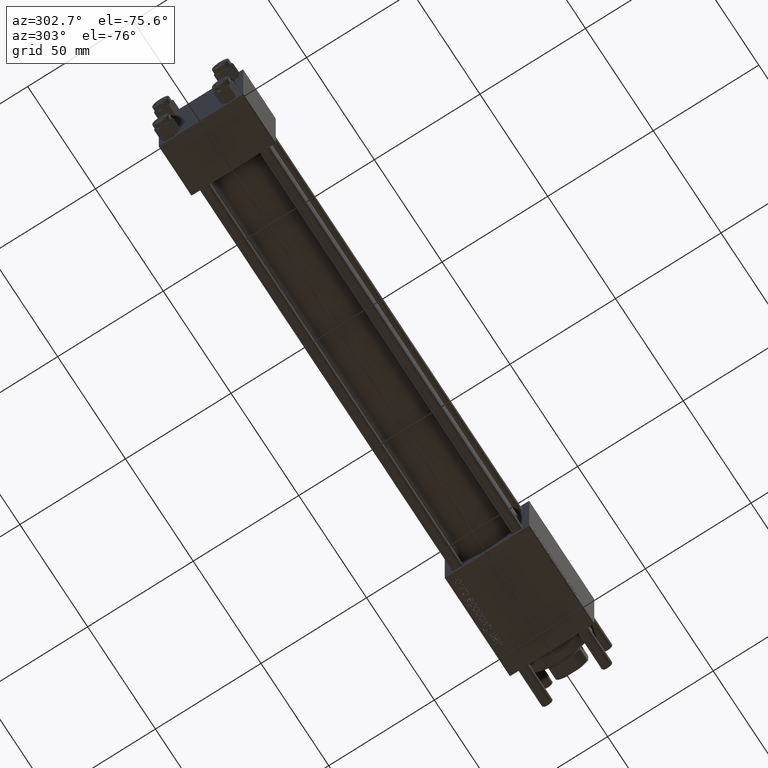
[diagram: clean part render]
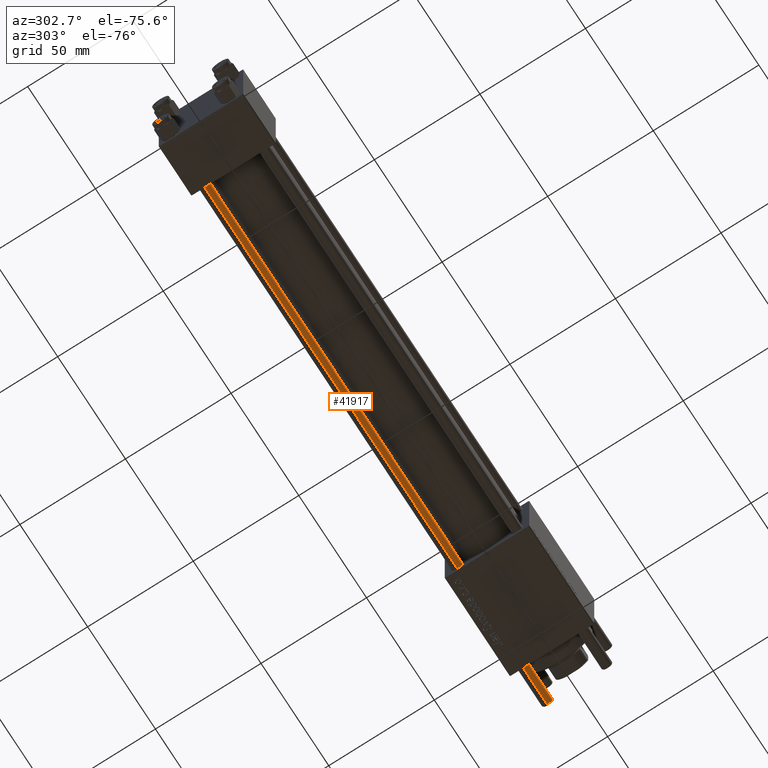
[diagram: same view with one face highlighted and labeled with its STEP entity id]
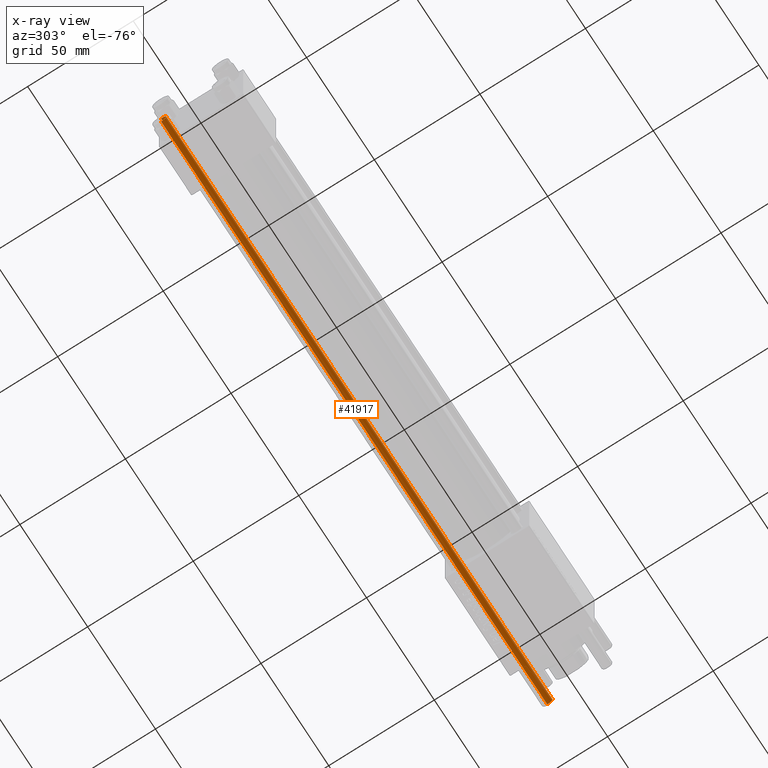
[diagram: x-ray of the same camera — body ghosted, the highlighted face saturated]
A machine part, auxiliary view. The second image highlights one B-rep face of the part: STEP entity #41917.
The next image is the same camera in x-ray: the body ghosted, the highlighted face saturated — about 0% of this face is hidden behind the body in this view.
In plain terms, the highlighted cylindrical surface (edge-blend (fillet) strip) has radius 2.5 mm, axis along (-1, -0, 0).
Its self-contained STEP definition (entity closure, byte-faithful):
#3149 = VERTEX_POINT ( 'NONE', #19335 ) ;
#3913 = DIRECTION ( 'NONE',  ( 1.000000000000000000, 0.000000000000000000, 0.000000000000000000 ) ) ;
#5172 = DIRECTION ( 'NONE',  ( -0.000000000000000000, -0.000000000000000000, -1.000000000000000000 ) ) ;
#5392 = CARTESIAN_POINT ( 'NONE',  ( 0.000000000000000000, 0.000000000000000000, 286.0000000000000000 ) ) ;
#6002 = CIRCLE ( 'NONE', #43508, 2.500000000000000000 ) ;
#6229 = DIRECTION ( 'NONE',  ( -0.000000000000000000, -0.000000000000000000, -1.000000000000000000 ) ) ;
#11170 = DIRECTION ( 'NONE',  ( -0.000000000000000000, -0.000000000000000000, -1.000000000000000000 ) ) ;
#11255 = ORIENTED_EDGE ( 'NONE', *, *, #35222, .F. ) ;
#13073 = CARTESIAN_POINT ( 'NONE',  ( 0.000000000000000000, 0.000000000000000000, 0.4999999999999449329 ) ) ;
#14229 = AXIS2_PLACEMENT_3D ( 'NONE', #13073, #25652, #3913 ) ;
#16055 = CIRCLE ( 'NONE', #14229, 2.500000000000000000 ) ;
#17440 = ORIENTED_EDGE ( 'NONE', *, *, #51909, .T. ) ;
#18058 = CARTESIAN_POINT ( 'NONE',  ( -2.500000000000000000, 0.000000000000000000, 286.0000000000000000 ) ) ;
#18187 = EDGE_CURVE ( 'NONE', #34528, #36502, #53039, .T. ) ;
#18227 = CARTESIAN_POINT ( 'NONE',  ( 2.500000000000000000, 3.061616997868383141E-16, 285.4999999999999432 ) ) ;
#19335 = CARTESIAN_POINT ( 'NONE',  ( 2.500000000000000000, 3.061616997868383141E-16, 0.4999999999999449329 ) ) ;
#20025 = LINE ( 'NONE', #24036, #25726 ) ;
#23670 = DIRECTION ( 'NONE',  ( -1.000000000000000000, 0.000000000000000000, 0.000000000000000000 ) ) ;
#24036 = CARTESIAN_POINT ( 'NONE',  ( 2.500000000000000000, 3.061616997868383141E-16, 286.0000000000000000 ) ) ;
#24111 = ORIENTED_EDGE ( 'NONE', *, *, #18187, .T. ) ;
#24150 = CARTESIAN_POINT ( 'NONE',  ( -2.500000000000000000, 0.000000000000000000, 0.4999999999999449329 ) ) ;
#24517 = CARTESIAN_POINT ( 'NONE',  ( 0.000000000000000000, 0.000000000000000000, 285.4999999999999432 ) ) ;
#25652 = DIRECTION ( 'NONE',  ( -0.000000000000000000, -0.000000000000000000, 1.000000000000000000 ) ) ;
#25726 = VECTOR ( 'NONE', #11170, 1000.000000000000000 ) ;
#27132 = FACE_OUTER_BOUND ( 'NONE', #39697, .T. ) ;
#32849 = DIRECTION ( 'NONE',  ( 1.000000000000000000, 0.000000000000000000, 0.000000000000000000 ) ) ;
#34528 = VERTEX_POINT ( 'NONE', #46842 ) ;
#34999 = AXIS2_PLACEMENT_3D ( 'NONE', #5392, #6229, #23670 ) ;
#35222 = EDGE_CURVE ( 'NONE', #39254, #3149, #20025, .T. ) ;
#36502 = VERTEX_POINT ( 'NONE', #24150 ) ;
#39254 = VERTEX_POINT ( 'NONE', #18227 ) ;
#39552 = VECTOR ( 'NONE', #5172, 1000.000000000000000 ) ;
#39697 = EDGE_LOOP ( 'NONE', ( #11255, #55332, #24111, #17440 ) ) ;
#41917 = ADVANCED_FACE ( 'NONE', ( #27132 ), #44644, .T. ) ;
#43508 = AXIS2_PLACEMENT_3D ( 'NONE', #24517, #45758, #32849 ) ;
#44644 = CYLINDRICAL_SURFACE ( 'NONE', #34999, 2.500000000000000000 ) ;
#45758 = DIRECTION ( 'NONE',  ( 0.000000000000000000, 0.000000000000000000, -1.000000000000000000 ) ) ;
#46842 = CARTESIAN_POINT ( 'NONE',  ( -2.500000000000000000, 0.000000000000000000, 285.4999999999999432 ) ) ;
#51776 = EDGE_CURVE ( 'NONE', #39254, #34528, #6002, .T. ) ;
#51909 = EDGE_CURVE ( 'NONE', #36502, #3149, #16055, .T. ) ;
#53039 = LINE ( 'NONE', #18058, #39552 ) ;
#55332 = ORIENTED_EDGE ( 'NONE', *, *, #51776, .T. ) ;